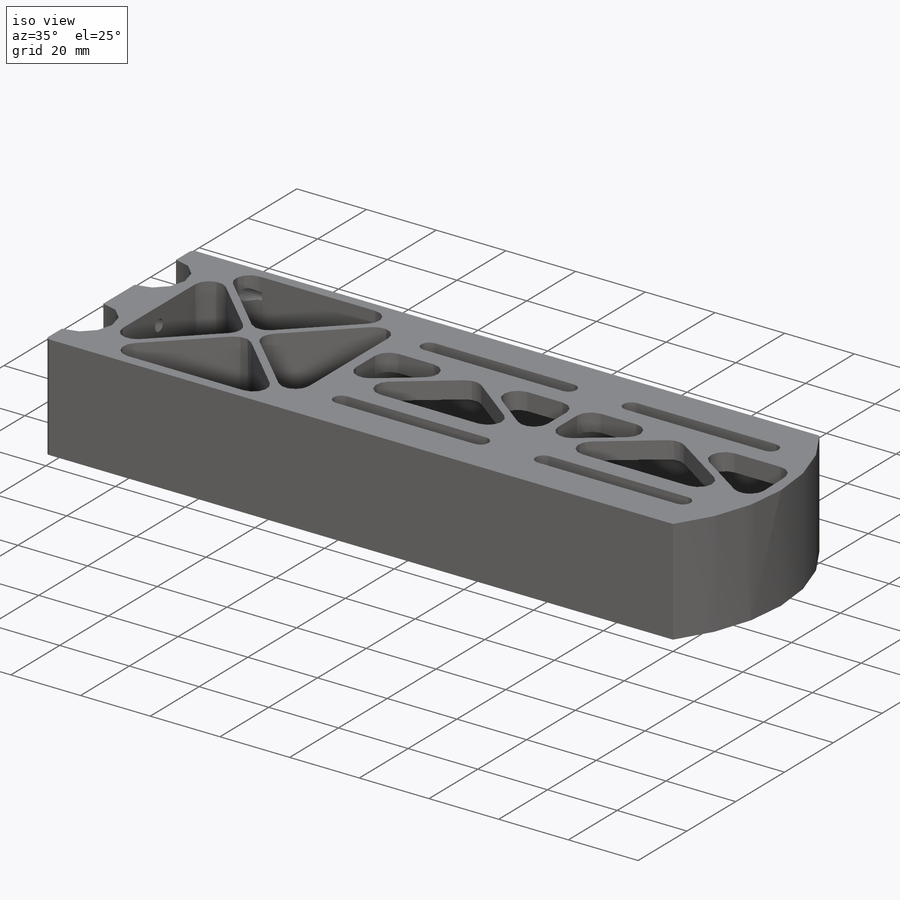
[diagram: iso view]
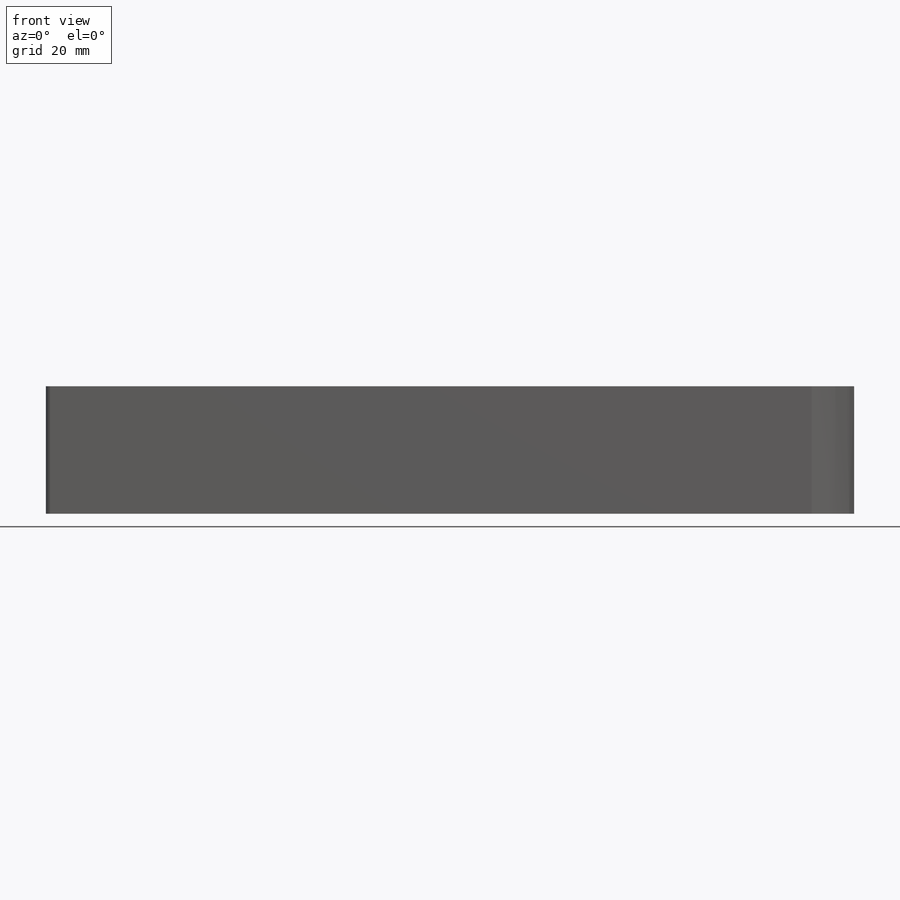
[diagram: front view]
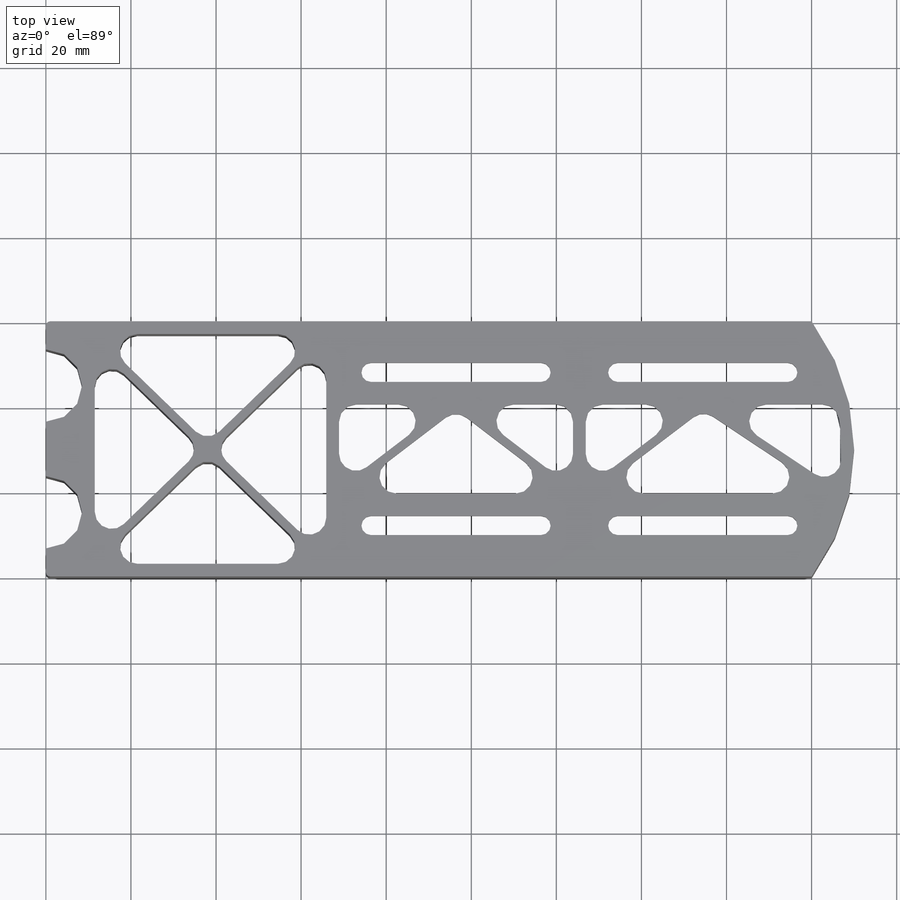
[diagram: top view]
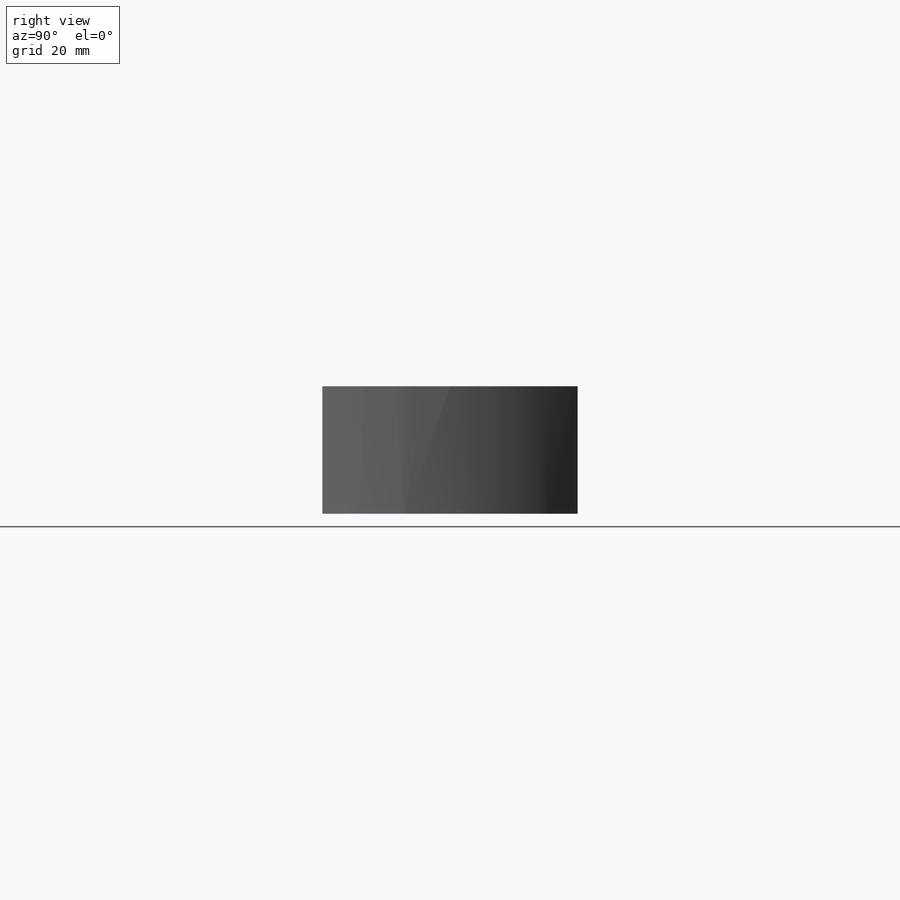
[diagram: right view]
SOLIDWORKS PART (.sldprt)
format: sldprt  version: not decoded by parser v0  size: 909,312 bytes
history: native  units: mm
features: sketch x16, extrude x10, thread x6, fillet x5, cut_extrude x4, material x1, move_body x1, hole x1 + 2 further entries (+11 scaffold rows collapsed)
feature tree (57):
  scaffold x11  (default folders/planes/origin — collapsed)
  material  "3.1355 (EN-AW 2024)"
  sketch  "Эскиз1"  dims[c1.D2=14.2mm c1.D4=15.2mm c1.D8=50.0mm c1.D1=60.0mm c1.D3=15.1mm c2.D4=29.8mm c2.D5=140.0mm c2.D6=50.0mm c2.D7=190.0mm c3.D6=50.0mm]
  extrude  "Бобышка-Вытянуть1"  Depth=30mm
  sketch  "Эскиз2"  dims[D1=3.0mm]
  cut_extrude  "Вырез-Вытянуть1"  [1 undecoded]
  sketch  "Temp"  dims[D1=20.0mm]
  extrude  "Бобышка-Вытянуть2"  [1 undecoded]
  sketch  "Эскиз3"  dims[c1.D1=4.5mm c1.D6=4.5mm c1.D2=40.0mm c1.D3=9.0mm c1.D4=9.0mm c1.D5=9.0mm c2.D6=3.0mm c2.D7=7.5mm]
  extrude  "Бобышка-Вытянуть3"  Depth=5mm
  sketch  "Эскиз4"
  extrude  "Бобышка-Вытянуть4"  [1 undecoded]
  sketch  "Эскиз6"  dims[D1=3.0mm]
  extrude  "Бобышка-Вытянуть5"  [1 undecoded]
  sketch  "Эскиз7"  dims[D1=1.0mm D2=1.0mm]
  extrude  "Бобышка-Вытянуть6"  [1 undecoded]
  sketch  "Эскиз9"  dims[D1=1.5mm D2=1.5mm]
  extrude  "Бобышка-Вытянуть8"  [1 undecoded]
  sketch  "Эскиз8"  dims[c1.D1=1.0mm c1.D2=1.0mm c2.D1=1.0mm c2.D2=1.0mm]
  extrude  "Бобышка-Вытянуть7"  [1 undecoded]
  fillet  "Скругление1"  Radius=4mm
  fillet  "Скругление2"  Radius=4mm
  fillet  "Скругление3"  Radius=4mm
  sketch  "Эскиз10"  dims[D1=2.25mm D2=2.25mm D3=2.25mm D4=2.25mm]
  extrude  "Бобышка-Вытянуть9"  [1 undecoded]
  sketch  "Эскиз12"  dims[D3=5.0mm D1=3.0mm D2=3.0mm]
  cut_extrude  "Вырез-Вытянуть2"  [1 undecoded]
  sketch  "Эскиз15"  dims[D1=0.0mm]
  cut_extrude  "Вырез-Вытянуть3"  Depth=20mm
  move_body  "Тело-Переместить/Копировать1"
  "Совпадение8"
  "Совпадение7"
  sketch  "Эскиз16"  dims[D1=1.4mm D2=1.4mm]
  cut_extrude  "Вырез-Вытянуть4"  [1 undecoded]
  sketch  "Эскиз17"  dims[D1=1.4mm]
  extrude  "Бобышка-Вытянуть10"  [1 undecoded]
  fillet  "Скругление4"  Radius=4mm
  hole  "Отверстие обработанное метчиком M4x0.71"  [1 undecoded]
  sketch  "Эскиз13"
  sketch  "Эскиз14"  dims[Диаметр сверла=3.3mm Глубина сверла=22.0mm Угол заточки сверла=118.0deg]
  thread  "Отверстие резьбы1"  Diameter=22mm  [1 undecoded]
  thread  "Отверстие резьбы2"  Diameter=11.5mm  [1 undecoded]
  thread  "Отверстие резьбы3"  Diameter=22mm  [1 undecoded]
  thread  "Отверстие резьбы4"  Diameter=22mm  [1 undecoded]
  thread  "Отверстие резьбы5"  Diameter=11.5mm  [1 undecoded]
  thread  "Отверстие резьбы6"  Diameter=22mm  [1 undecoded]
  fillet  "Скругление5"  Radius=1mm
decode coverage: 28 of 43 modeling features carry decoded parameters; 2 rows unclassified (native names shown)
note: 18 parameter values undecoded
summary: no parameter record found for 12 features
note: suppression state not decoded; provenance and decode notes live in map.json
